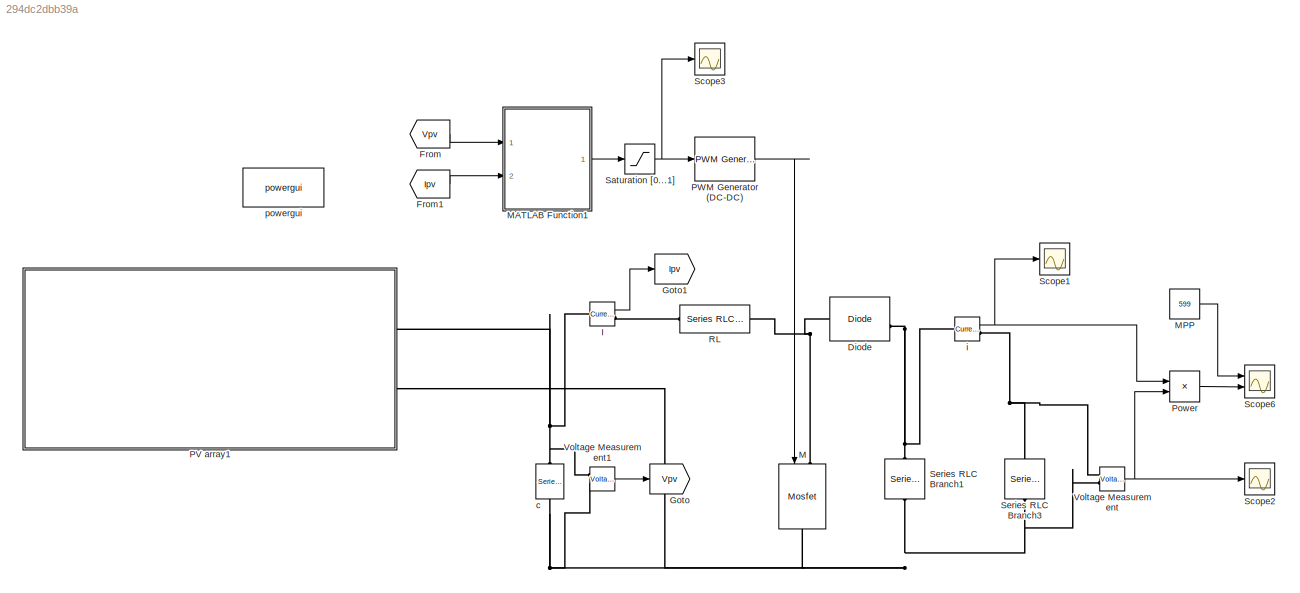
MODEL slx_294dc2dbb39a
KIND model
CONFIG AbsTol = auto
CONFIG EnableMultiTasking = off
CONFIG FixedStep = auto
CONFIG MaxStep = 1e-4
CONFIG MinStep = auto
CONFIG RelTol = 1e-3
CONFIG SampleTimeConstraint = Unconstrained
CONFIG Solver = VariableStepAuto
CONFIG SolverName = VariableStepAuto
CONFIG StartTime = 0.0
CONFIG StopTime = 2
BLOCK [Reference] Diode  REF=powerlib/Power
Electronics/Diode
  Ports = [0, 1, 0, 0, 0, 1, 1]
  SourceBlock = powerlib/Power\nElectronics/Diode
  SourceProductBaseCode = PS
  SourceType = Diode
BLOCK [From] From
  GotoTag = Vpv
BLOCK [From] From1
  GotoTag = Ipv
BLOCK [Goto] Goto
  GotoTag = Vpv
BLOCK [Goto] Goto1
  GotoTag = Ipv
BLOCK [Reference] I  REF=powerlib/Measurements/Current Measurement
  Ports = [0, 1, 0, 0, 0, 1, 1]
  SourceBlock = powerlib/Measurements/Current Measurement
  SourceProductBaseCode = PS
  SourceType = Current Measurement
  UserDataPersistent = on
BLOCK [Reference] M  REF=powerlib/Power
Electronics/Mosfet
  NameLocation = left
  Ports = [1, 0, 0, 0, 0, 1, 1]
  SourceBlock = powerlib/Power\nElectronics/Mosfet
  SourceProductBaseCode = PS
  SourceType = Mosfet
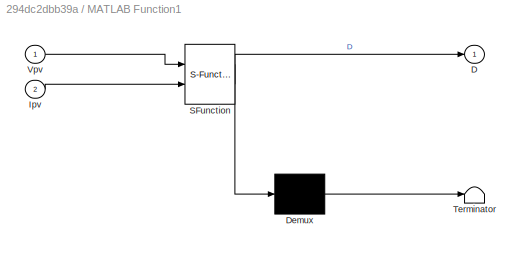
BLOCK [SubSystem] MATLAB Function1
  ErrorFcn = Stateflow.Translate.translate
  PermitHierarchicalResolution = ExplicitOnly
  Ports = [2, 1]
  RequestExecContextInheritance = off
  SFBlockType = MATLAB Function
  TreatAsAtomicUnit = on
BLOCK [Demux] MATLAB Function1/ Demux 
  Outputs = 1
  Ports = [1, 1]
BLOCK [S-Function] MATLAB Function1/ SFunction 
  EnableBusSupport = on
  FunctionName = sf_sfun
  PortCounts = [2 2]
  Ports = [2, 2]
  SFcnIsStateOwnerBlock = off
  SFunctionDeploymentMode = off
  Tag = Stateflow S-Function 1
BLOCK [Terminator] MATLAB Function1/ Terminator 
BLOCK [Outport] MATLAB Function1/D
BLOCK [Inport] MATLAB Function1/Ipv
  Port = 2
BLOCK [Inport] MATLAB Function1/Vpv
BLOCK [Constant] MPP
  Value = 599
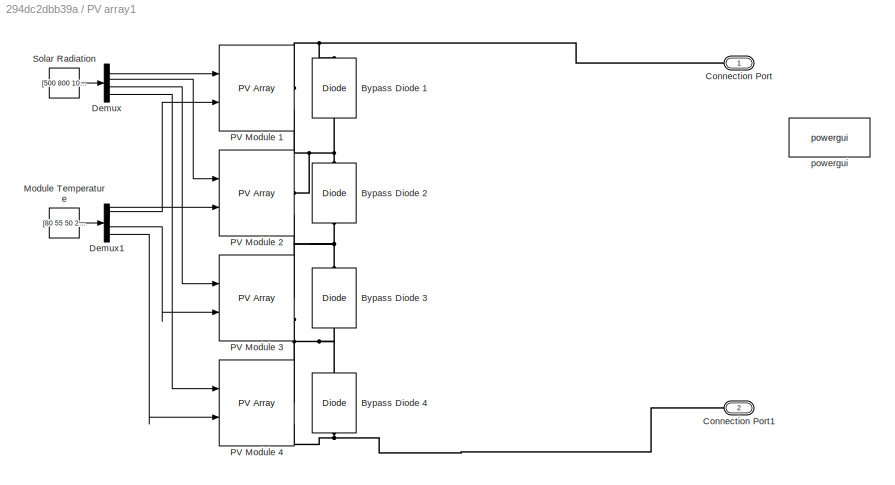
BLOCK [SubSystem] PV array1
  Ports = [0, 0, 0, 0, 0, 0, 2]
  RequestExecContextInheritance = off
BLOCK [Reference] PV array1/Bypass Diode 1  REF=powerlib/Power
Electronics/Diode
  NameLocation = right
  Ports = [0, 0, 0, 0, 0, 1, 1]
  SourceBlock = powerlib/Power\nElectronics/Diode
  SourceProductBaseCode = PS
  SourceType = Diode
BLOCK [Reference] PV array1/Bypass Diode 2  REF=powerlib/Power
Electronics/Diode
  NameLocation = right
  Ports = [0, 0, 0, 0, 0, 1, 1]
  SourceBlock = powerlib/Power\nElectronics/Diode
  SourceProductBaseCode = PS
  SourceType = Diode
BLOCK [Reference] PV array1/Bypass Diode 3  REF=powerlib/Power
Electronics/Diode
  NameLocation = right
  Ports = [0, 0, 0, 0, 0, 1, 1]
  SourceBlock = powerlib/Power\nElectronics/Diode
  SourceProductBaseCode = PS
  SourceType = Diode
BLOCK [Reference] PV array1/Bypass Diode 4  REF=powerlib/Power
Electronics/Diode
  NameLocation = right
  Ports = [0, 0, 0, 0, 0, 1, 1]
  SourceBlock = powerlib/Power\nElectronics/Diode
  SourceProductBaseCode = PS
  SourceType = Diode
BLOCK [PMIOPort] PV array1/Connection Port
  NameLocation = top
  Side = Right
BLOCK [PMIOPort] PV array1/Connection Port1
  NameLocation = top
  Port = 2
  Side = Right
BLOCK [Demux] PV array1/Demux
  Ports = [1, 4]
BLOCK [Demux] PV array1/Demux1
  Ports = [1, 4]
BLOCK [Constant] PV array1/Module Temperature
  Value = [80 55 50 25]
BLOCK [Reference] PV array1/PV Module 1  REF=re_lib/Solar/PV Array
  Ports = [2, 1, 0, 0, 0, 0, 2]
  SourceBlock = re_lib/Solar/PV Array
  SourceProductBaseCode = PS
  SourceType = PV array
BLOCK [Reference] PV array1/PV Module 2  REF=re_lib/Solar/PV Array
  Ports = [2, 1, 0, 0, 0, 0, 2]
  SourceBlock = re_lib/Solar/PV Array
  SourceProductBaseCode = PS
  SourceType = PV array
BLOCK [Reference] PV array1/PV Module 3  REF=re_lib/Solar/PV Array
  Ports = [2, 1, 0, 0, 0, 0, 2]
  SourceBlock = re_lib/Solar/PV Array
  SourceProductBaseCode = PS
  SourceType = PV array
BLOCK [Reference] PV array1/PV Module 4  REF=re_lib/Solar/PV Array
  Ports = [2, 1, 0, 0, 0, 0, 2]
  SourceBlock = re_lib/Solar/PV Array
  SourceProductBaseCode = PS
  SourceType = PV array
BLOCK [Constant] PV array1/Solar Radiation
  Value = [500 800 1000 1000]
BLOCK [Reference] PV array1/powergui  REF=powerlib/powergui
  Ports = []
  Priority = 1
  SourceBlock = powerlib/powergui
  SourceProductBaseCode = PS
  SourceType = PSB option menu block
BLOCK [Reference] PWM Generator (DC-DC)  REF=powerlib_meascontrol/Pulse & Signal
Generators/PWM Generator
(DC-DC)
  NameLocation = top
  Ports = [1, 1]
  SourceBlock = powerlib_meascontrol/Pulse & Signal\nGenerators/PWM Generator\n(DC-DC)
  SourceProductBaseCode = PS
  SourceType = PWM Generator (DC-DC)
BLOCK [Product] Power
  Ports = [2, 1]
BLOCK [Reference] RL  REF=powerlib/Elements/Series RLC Branch
  Ports = [0, 0, 0, 0, 0, 1, 1]
  SourceBlock = powerlib/Elements/Series RLC Branch
  SourceProductBaseCode = PS
  SourceType = Series RLC Branch
BLOCK [Saturate] Saturation [0...1]
  LowerLimit = 0
  UpperLimit = 1
BLOCK [Scope] Scope1
  Floating = off
  NumInputPorts = 1
  Ports = [1]
  ScopeSpecificationString = Simulink.scopes.TimeScopeBlockCfg('CurrentConfiguration', extmgr.ConfigurationSet(extmgr.Configuration('Core','General UI',true),extmgr.Configuration('Core','Source UI',true),extmgr.Configuration('Sources','WiredSimulink',true,'DataLoggingVariableName','ScopeData1'),extmgr.Configuration('Visuals','Time Domain',true,'SerializedDisplays',{struct('MinYLimReal','-0.88464','MaxYLimReal','7.9618','YLabe...<+1467ch>
BLOCK [Scope] Scope2
  Floating = off
  NumInputPorts = 1
  Ports = [1]
  ScopeSpecificationString = Simulink.scopes.TimeScopeBlockCfg('CurrentConfiguration', extmgr.ConfigurationSet(extmgr.Configuration('Core','General UI',true),extmgr.Configuration('Core','Source UI',true),extmgr.Configuration('Sources','WiredSimulink',true,'DataLoggingVariableName','ScopeData3'),extmgr.Configuration('Visuals','Time Domain',true,'SerializedDisplays',{struct('MinYLimReal','-28.23753','MaxYLimReal','254.13775','Y...<+1499ch>
BLOCK [Scope] Scope3
  Floating = off
  NumInputPorts = 1
  Ports = [1]
  ScopeSpecificationString = Simulink.scopes.TimeScopeBlockCfg('CurrentConfiguration', extmgr.ConfigurationSet(extmgr.Configuration('Core','General UI',true),extmgr.Configuration('Core','Source UI',true),extmgr.Configuration('Sources','WiredSimulink',true,'DataLoggingVariableName','ScopeData2'),extmgr.Configuration('Visuals','Time Domain',true,'SerializedDisplays',{struct('MinYLimReal','0.14469','MaxYLimReal','0.57281','YLabe...<+1473ch>
BLOCK [Scope] Scope6
  Floating = off
  NumInputPorts = 2
  Ports = [2]
  ScopeSpecificationString = Simulink.scopes.TimeScopeBlockCfg('CurrentConfiguration', extmgr.ConfigurationSet(extmgr.Configuration('Core','General UI',true,'FigureColor',[0 0 0]),extmgr.Configuration('Core','Source UI',true),extmgr.Configuration('Sources','WiredSimulink',true,'DataLoggingVariableName','ScopeData5'),extmgr.Configuration('Visuals','Time Domain',true,'SerializedDisplays',{struct('MinYLimReal','-79.7125','MaxYLi...<+1716ch>
BLOCK [Reference] Series RLC Branch1  REF=powerlib/Elements/Series RLC Branch
  NameLocation = left
  Ports = [0, 0, 0, 0, 0, 1, 1]
  SourceBlock = powerlib/Elements/Series RLC Branch
  SourceProductBaseCode = PS
  SourceType = Series RLC Branch
BLOCK [Reference] Series RLC Branch3  REF=powerlib/Elements/Series RLC Branch
  NameLocation = left
  Ports = [0, 0, 0, 0, 0, 1, 1]
  SourceBlock = powerlib/Elements/Series RLC Branch
  SourceProductBaseCode = PS
  SourceType = Series RLC Branch
BLOCK [Reference] Voltage Measurement  REF=powerlib/Measurements/Voltage Measurement
  Ports = [0, 1, 0, 0, 0, 2]
  SourceBlock = powerlib/Measurements/Voltage Measurement
  SourceProductBaseCode = PS
  SourceType = Voltage Measurement
  UserDataPersistent = on
BLOCK [Reference] Voltage Measurement1  REF=powerlib/Measurements/Voltage Measurement
  Ports = [0, 1, 0, 0, 0, 2]
  SourceBlock = powerlib/Measurements/Voltage Measurement
  SourceProductBaseCode = PS
  SourceType = Voltage Measurement
  UserDataPersistent = on
BLOCK [Reference] c  REF=powerlib/Elements/Series RLC Branch
  NameLocation = left
  Ports = [0, 0, 0, 0, 0, 1, 1]
  SourceBlock = powerlib/Elements/Series RLC Branch
  SourceProductBaseCode = PS
  SourceType = Series RLC Branch
BLOCK [Reference] i  REF=powerlib/Measurements/Current Measurement
  Ports = [0, 1, 0, 0, 0, 1, 1]
  SourceBlock = powerlib/Measurements/Current Measurement
  SourceProductBaseCode = PS
  SourceType = Current Measurement
  UserDataPersistent = on
BLOCK [Reference] powergui  REF=powerlib/powergui
  Ports = []
  Priority = 1
  SourceBlock = powerlib/powergui
  SourceProductBaseCode = PS
  SourceType = PSB option menu block
LINE From1:1 -> MATLAB Function1:2
LINE From:1 -> MATLAB Function1:1
LINE I:1 -> Goto1:1
LINE MATLAB Function1:1 -> Saturation [0...1]:1
LINE MPP:1 -> Scope6:1
LINE PV array1/Demux1:1 -> PV array1/PV Module 1:2
LINE PV array1/Demux1:2 -> PV array1/PV Module 2:2
LINE PV array1/Demux1:3 -> PV array1/PV Module 3:2
LINE PV array1/Demux1:4 -> PV array1/PV Module 4:2
LINE PV array1/Demux:1 -> PV array1/PV Module 1:1
LINE PV array1/Demux:2 -> PV array1/PV Module 2:1
LINE PV array1/Demux:3 -> PV array1/PV Module 3:1
LINE PV array1/Demux:4 -> PV array1/PV Module 4:1
LINE PV array1/Module Temperature:1 -> PV array1/Demux1:1
LINE PV array1/Solar Radiation:1 -> PV array1/Demux:1
LINE PWM Generator (DC-DC):1 -> M:1
LINE Power:1 -> Scope6:2
NET Saturation [0...1]:1 -> PWM Generator (DC-DC):1, Scope3:1
LINE Voltage Measurement1:1 -> Goto:1
NET Voltage Measurement:1 -> Power:2, Scope2:1
NET i:1 -> Power:1, Scope1:1
PNET net1: Diode:LConn1 -- M:LConn1 -- RL:RConn1
PNET net2: Diode:RConn1 -- Series RLC Branch1:LConn1 -- i:LConn1
PNET net3: I:LConn1 -- PV array1:RConn1 -- Voltage Measurement1:LConn1 -- c:LConn1
PLINE I:RConn1 -- RL:LConn1
PNET net4: M:RConn1 -- PV array1:RConn2 -- Series RLC Branch1:RConn1 -- Series RLC Branch3:RConn1 -- Voltage Measurement1:LConn2 -- Voltage Measurement:LConn2 -- c:RConn1
PNET net5: PV array1/Bypass Diode 1:LConn1 -- PV array1/Bypass Diode 2:RConn1 -- PV array1/PV Module 1:RConn2 -- PV array1/PV Module 2:RConn1
PNET net6: PV array1/Bypass Diode 1:RConn1 -- PV array1/Connection Port:RConn1 -- PV array1/PV Module 1:RConn1
PNET net7: PV array1/Bypass Diode 2:LConn1 -- PV array1/Bypass Diode 3:RConn1 -- PV array1/PV Module 2:RConn2 -- PV array1/PV Module 3:RConn1
PNET net8: PV array1/Bypass Diode 3:LConn1 -- PV array1/Bypass Diode 4:RConn1 -- PV array1/PV Module 3:RConn2 -- PV array1/PV Module 4:RConn1
PNET net9: PV array1/Bypass Diode 4:LConn1 -- PV array1/Connection Port1:RConn1 -- PV array1/PV Module 4:RConn2
PNET net10: Series RLC Branch3:LConn1 -- Voltage Measurement:LConn1 -- i:RConn1
note: NET lines group one-source signal fan-out (src -> all destinations, sorted); 1:1 wires keep LINE; PNET lines group multi-terminal physical nets as a canonical sorted terminal list (undirected conserving connections); 2-terminal nets keep the pairwise PLINE form
CHART MATLAB Function1 states=1 transitions=1
  STATE_LABEL 'eML_blk_kernel()'
  STATE_LABEL 'SCRIPT:\nfunction D = PSO(Vpv,Ipv)\n%Initialization\n%= u = index of current particle, dcurrent = current duty cycle, \n%pbest = personal best dc value, p= power of pos, v=velocity\n% dc = duty cycle of pos, counter to limit duty cycles update(interation)\npersistent u dcurrent pbest p dc v counter gbest;\n\nif(isempty(counter))\n    counter=0;\nend\nif(isempty(dcurrent))\n    dcurrent=0.5;\nend\nif(isempty(gbe...<+2067ch>'
CHART  states=0 transitions=0
